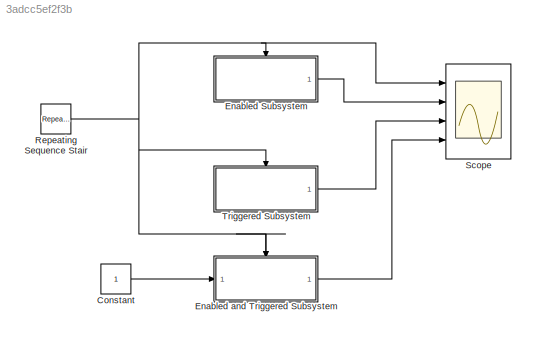
MODEL slx_3adcc5ef2f3b
KIND model
CONFIG AbsTol = auto
CONFIG EnableMultiTasking = off
CONFIG FixedStep = auto
CONFIG MaxStep = auto
CONFIG MinStep = auto
CONFIG RelTol = 1e-3
CONFIG SampleTimeConstraint = Unconstrained
CONFIG Solver = FixedStepDiscrete
CONFIG SolverName = FixedStepDiscrete
CONFIG StartTime = 0.0
CONFIG StopTime = 14
BLOCK [Constant] Constant
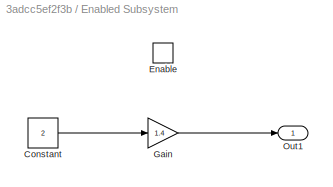
BLOCK [SubSystem] Enabled Subsystem
  Ports = [0, 1, 1]
  RequestExecContextInheritance = off
  TreatAsAtomicUnit = on
BLOCK [Constant] Enabled Subsystem/Constant
  Value = 2
BLOCK [EnablePort] Enabled Subsystem/Enable
  Ports = []
  StatesWhenEnabling = reset
BLOCK [Gain] Enabled Subsystem/Gain
  Gain = 1.4
  OutDataTypeStr = Inherit: Inherit via internal rule
  ParamDataTypeStr = Inherit: Inherit via internal rule
  SaturateOnIntegerOverflow = off
BLOCK [Outport] Enabled Subsystem/Out1
  IconDisplay = Port number
  InitialOutput = [0]
  OutputWhenDisabled = reset
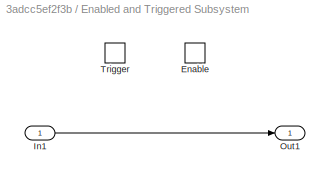
BLOCK [SubSystem] Enabled and Triggered Subsystem
  Ports = [1, 1, 1, 1]
  RequestExecContextInheritance = off
  TreatAsAtomicUnit = on
BLOCK [EnablePort] Enabled and Triggered Subsystem/Enable
  Ports = []
BLOCK [Inport] Enabled and Triggered Subsystem/In1
  IconDisplay = Port number
BLOCK [Outport] Enabled and Triggered Subsystem/Out1
  IconDisplay = Port number
BLOCK [TriggerPort] Enabled and Triggered Subsystem/Trigger
  Ports = []
  StatesWhenEnabling = held
  VariantControl = Variant
BLOCK [Reference] Repeating Sequence Stair  REF=simulink/Sources/Repeating
Sequence
Stair
  Ports = [0, 1]
  SourceBlock = simulink/Sources/Repeating\nSequence\nStair
  SourceProductBaseCode = SL
  SourceProductName = Simulink
  SourceType = Repeating Sequence Stair
BLOCK [Scope] Scope
  Floating = off
  NumInputPorts = 4
  Ports = [4]
  ScopeSpecificationString = Simulink.scopes.TimeScopeBlockCfg('CurrentConfiguration', extmgr.ConfigurationSet(extmgr.Configuration('Core','General UI',true),extmgr.Configuration('Core','Source UI',true),extmgr.Configuration('Sources','WiredSimulink',true),extmgr.Configuration('Visuals','Time Domain',true,'SerializedDisplays',{struct('MinYLimReal','-0.125','MaxYLimReal','1.125','YLabelReal','','MinYLimMag','0.00000','MaxYLimM...<+3356ch>
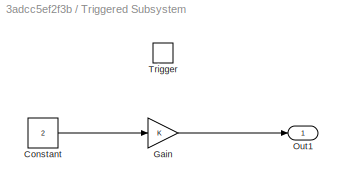
BLOCK [SubSystem] Triggered Subsystem
  Ports = [0, 1, 0, 1]
  RequestExecContextInheritance = off
  TreatAsAtomicUnit = on
BLOCK [Constant] Triggered Subsystem/Constant
  Value = 2
BLOCK [Gain] Triggered Subsystem/Gain
  OutDataTypeStr = Inherit: Inherit via internal rule
  ParamDataTypeStr = Inherit: Inherit via internal rule
  SaturateOnIntegerOverflow = off
BLOCK [Outport] Triggered Subsystem/Out1
  IconDisplay = Port number
  InitialOutput = [0]
BLOCK [TriggerPort] Triggered Subsystem/Trigger
  InitialTriggerSignalState = zero
  Ports = []
  StatesWhenEnabling = held
  TriggerType = falling
  VariantControl = Variant
LINE Constant:1 -> Enabled and Triggered Subsystem:1
LINE Enabled Subsystem/Constant:1 -> Enabled Subsystem/Gain:1
LINE Enabled Subsystem/Gain:1 -> Enabled Subsystem/Out1:1
LINE Enabled Subsystem:1 -> Scope:2
LINE Enabled and Triggered Subsystem/In1:1 -> Enabled and Triggered Subsystem/Out1:1
LINE Enabled and Triggered Subsystem:1 -> Scope:4
NET Repeating Sequence Stair:1 -> Enabled Subsystem:enable, Enabled and Triggered Subsystem:enable, Enabled and Triggered Subsystem:trigger, Scope:1, Triggered Subsystem:trigger
LINE Triggered Subsystem/Constant:1 -> Triggered Subsystem/Gain:1
LINE Triggered Subsystem/Gain:1 -> Triggered Subsystem/Out1:1
LINE Triggered Subsystem:1 -> Scope:3
note: NET lines group one-source signal fan-out (src -> all destinations, sorted); 1:1 wires keep LINE
